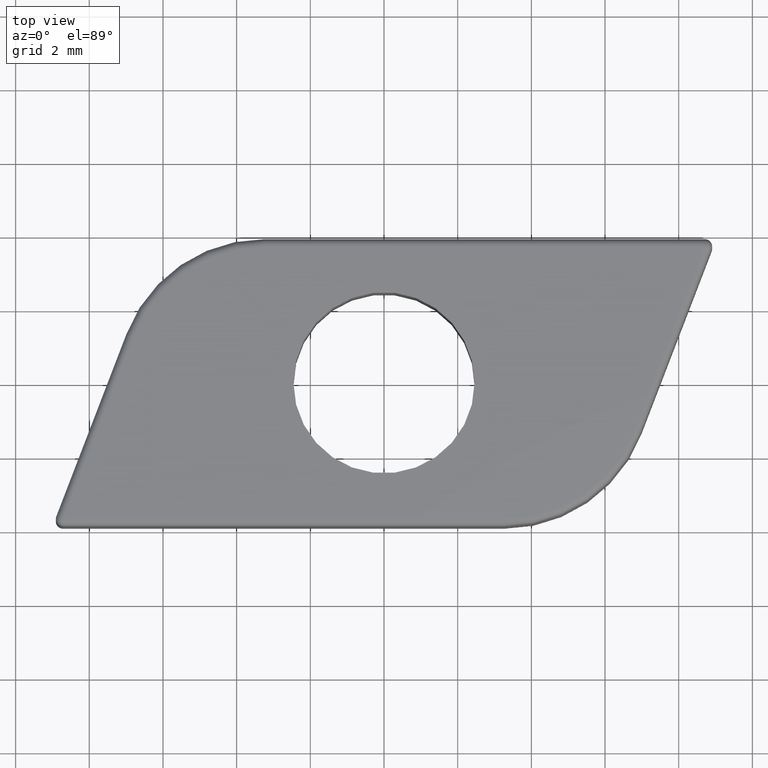
[diagram: clean part render]
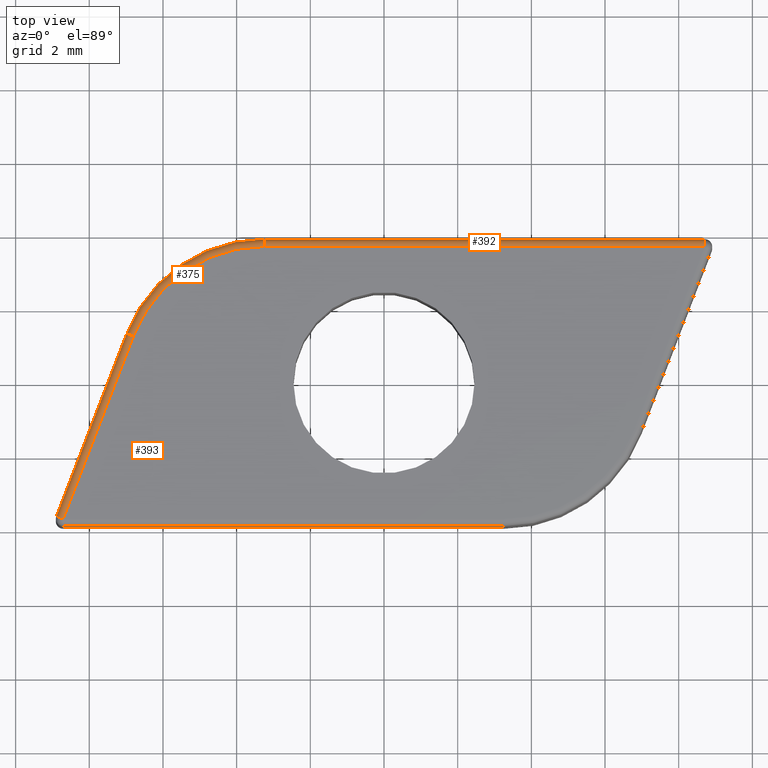
[diagram: same view with one multi-face feature highlighted, each face labeled with its STEP entity id]
A machine part, top view. The highlighted faces form ONE feature: a constant-radius fillet chain: 3 tangent blend faces with common blend radius 0.2 mm. The faces share edges in the B-rep.
Their STEP definitions:
[1] entity #392 (Cylinder):
#41=LINE('',#716,#66);
#42=LINE('',#717,#67);
#66=VECTOR('',#594,10.);
#67=VECTOR('',#595,10.);
#82=CYLINDRICAL_SURFACE('',#470,0.2);
#107=FACE_OUTER_BOUND('',#134,.T.);
#134=EDGE_LOOP('',(#325,#326,#327,#328));
#146=CIRCLE('',#426,0.2);
#159=CIRCLE('',#442,0.2);
#176=VERTEX_POINT('',#625);
#177=VERTEX_POINT('',#626);
#188=VERTEX_POINT('',#651);
#189=VERTEX_POINT('',#653);
#206=EDGE_CURVE('',#176,#177,#146,.T.);
#219=EDGE_CURVE('',#188,#189,#159,.F.);
#252=EDGE_CURVE('',#177,#188,#41,.T.);
#253=EDGE_CURVE('',#189,#176,#42,.T.);
#325=ORIENTED_EDGE('',*,*,#206,.T.);
#326=ORIENTED_EDGE('',*,*,#252,.T.);
#327=ORIENTED_EDGE('',*,*,#219,.T.);
#328=ORIENTED_EDGE('',*,*,#253,.T.);
#392=ADVANCED_FACE('',(#107),#82,.T.);
#426=AXIS2_PLACEMENT_3D('',#627,#486,#487);
#442=AXIS2_PLACEMENT_3D('',#655,#518,#519);
#470=AXIS2_PLACEMENT_3D('',#715,#592,#593);
#486=DIRECTION('center_axis',(1.,0.,0.));
#487=DIRECTION('ref_axis',(0.,1.,0.));
#518=DIRECTION('center_axis',(1.,5.55111512312579E-15,0.));
#519=DIRECTION('ref_axis',(0.,0.,1.));
#592=DIRECTION('center_axis',(-1.,-7.40154601920732E-17,0.));
#593=DIRECTION('ref_axis',(0.,0.707106781186548,0.707106781186548));
#594=DIRECTION('',(1.,7.40154601920732E-17,0.));
#595=DIRECTION('',(-1.,-7.40154601920732E-17,0.));
#625=CARTESIAN_POINT('',(-3.25272308672009,3.9,3.8));
#626=CARTESIAN_POINT('',(-3.25272308672009,3.7,4.));
#627=CARTESIAN_POINT('Origin',(-3.25272308672009,3.7,3.8));
#651=CARTESIAN_POINT('',(8.70878984670604,3.7,4.));
#653=CARTESIAN_POINT('',(8.70878984670604,3.9,3.8));
#655=CARTESIAN_POINT('Origin',(8.70878984670604,3.7,3.8));
#715=CARTESIAN_POINT('Origin',(4.5,3.7,3.8));
#716=CARTESIAN_POINT('',(4.5,3.7,4.));
#717=CARTESIAN_POINT('',(4.5,3.9,3.8));
[2] entity #375 (Torus):
#90=FACE_OUTER_BOUND('',#117,.T.);
#117=EDGE_LOOP('',(#261,#262,#263,#264));
#146=CIRCLE('',#426,0.2);
#147=CIRCLE('',#427,4.);
#148=CIRCLE('',#428,0.2);
#149=CIRCLE('',#429,3.8);
#176=VERTEX_POINT('',#625);
#177=VERTEX_POINT('',#626);
#178=VERTEX_POINT('',#628);
#179=VERTEX_POINT('',#630);
#206=EDGE_CURVE('',#176,#177,#146,.T.);
#207=EDGE_CURVE('',#178,#176,#147,.F.);
#208=EDGE_CURVE('',#179,#178,#148,.T.);
#209=EDGE_CURVE('',#179,#177,#149,.T.);
#261=ORIENTED_EDGE('',*,*,#206,.F.);
#262=ORIENTED_EDGE('',*,*,#207,.F.);
#263=ORIENTED_EDGE('',*,*,#208,.F.);
#264=ORIENTED_EDGE('',*,*,#209,.T.);
#371=TOROIDAL_SURFACE('',#425,3.80000000000001,0.2);
#375=ADVANCED_FACE('',(#90),#371,.T.);
#425=AXIS2_PLACEMENT_3D('',#624,#484,#485);
#426=AXIS2_PLACEMENT_3D('',#627,#486,#487);
#427=AXIS2_PLACEMENT_3D('',#629,#488,#489);
#428=AXIS2_PLACEMENT_3D('',#631,#490,#491);
#429=AXIS2_PLACEMENT_3D('',#632,#492,#493);
#484=DIRECTION('center_axis',(0.,0.,1.));
#485=DIRECTION('ref_axis',(1.,0.,0.));
#486=DIRECTION('center_axis',(1.,0.,0.));
#487=DIRECTION('ref_axis',(0.,1.,0.));
#488=DIRECTION('center_axis',(0.,0.,1.));
#489=DIRECTION('ref_axis',(-0.933340797033894,0.35899158289873,0.));
#490=DIRECTION('center_axis',(-0.358991582898732,-0.933340797033893,0.));
#491=DIRECTION('ref_axis',(0.,0.,1.));
#492=DIRECTION('center_axis',(0.,0.,-1.));
#493=DIRECTION('ref_axis',(-0.566130911142145,0.824315347090763,0.));
#624=CARTESIAN_POINT('Origin',(-3.25272308672009,-0.100000000000012,3.8));
#625=CARTESIAN_POINT('',(-3.25272308672009,3.9,3.8));
#626=CARTESIAN_POINT('',(-3.25272308672009,3.7,4.));
#627=CARTESIAN_POINT('Origin',(-3.25272308672009,3.7,3.8));
#628=CARTESIAN_POINT('',(-6.98608627485567,1.33596633159492,3.8));
#629=CARTESIAN_POINT('Origin',(-3.25272308672009,-0.100000000000001,3.8));
#630=CARTESIAN_POINT('',(-6.79941811544889,1.26416801501517,4.));
#631=CARTESIAN_POINT('Origin',(-6.79941811544889,1.26416801501517,3.8));
#632=CARTESIAN_POINT('Origin',(-3.25272308672009,-0.100000000000002,4.));
[3] entity #393 (Cylinder):
#43=LINE('',#719,#68);
#44=LINE('',#720,#69);
#68=VECTOR('',#598,10.);
#69=VECTOR('',#599,10.);
#83=CYLINDRICAL_SURFACE('',#471,0.2);
#108=FACE_OUTER_BOUND('',#135,.T.);
#135=EDGE_LOOP('',(#329,#330,#331,#332));
#148=CIRCLE('',#428,0.2);
#154=CIRCLE('',#436,0.2);
#178=VERTEX_POINT('',#628);
#179=VERTEX_POINT('',#630);
#184=VERTEX_POINT('',#643);
#185=VERTEX_POINT('',#644);
#208=EDGE_CURVE('',#179,#178,#148,.T.);
#214=EDGE_CURVE('',#184,#185,#154,.F.);
#254=EDGE_CURVE('',#185,#179,#43,.T.);
#255=EDGE_CURVE('',#178,#184,#44,.T.);
#329=ORIENTED_EDGE('',*,*,#214,.T.);
#330=ORIENTED_EDGE('',*,*,#254,.T.);
#331=ORIENTED_EDGE('',*,*,#208,.T.);
#332=ORIENTED_EDGE('',*,*,#255,.T.);
#393=ADVANCED_FACE('',(#108),#83,.T.);
#428=AXIS2_PLACEMENT_3D('',#631,#490,#491);
#436=AXIS2_PLACEMENT_3D('',#645,#506,#507);
#471=AXIS2_PLACEMENT_3D('',#718,#596,#597);
#490=DIRECTION('center_axis',(-0.358991582898732,-0.933340797033893,0.));
#491=DIRECTION('ref_axis',(0.,0.,1.));
#506=DIRECTION('center_axis',(-0.35899158289873,-0.933340797033894,7.17388581834911E-15));
#507=DIRECTION('ref_axis',(-0.933340797033894,0.35899158289873,0.));
#596=DIRECTION('center_axis',(-0.35899158289873,-0.933340797033894,0.));
#597=DIRECTION('ref_axis',(-0.659971606740721,0.253845382656587,0.707106781186549));
#598=DIRECTION('',(0.35899158289873,0.933340797033894,0.));
#599=DIRECTION('',(-0.35899158289873,-0.933340797033894,0.));
#628=CARTESIAN_POINT('',(-6.98608627485567,1.33596633159492,3.8));
#630=CARTESIAN_POINT('',(-6.79941811544889,1.26416801501517,4.));
#631=CARTESIAN_POINT('Origin',(-6.79941811544889,1.26416801501517,3.8));
#643=CARTESIAN_POINT('',(-8.89545800611282,-3.62820168342026,3.8));
#644=CARTESIAN_POINT('',(-8.70878984670604,-3.7,4.));
#645=CARTESIAN_POINT('Origin',(-8.70878984670605,-3.7,3.8));
#718=CARTESIAN_POINT('Origin',(-6.07996465452625,3.13467222356581,3.8));
#719=CARTESIAN_POINT('',(-6.07996465452625,3.13467222356581,4.));
#720=CARTESIAN_POINT('',(-6.26663281393303,3.20647054014555,3.8));